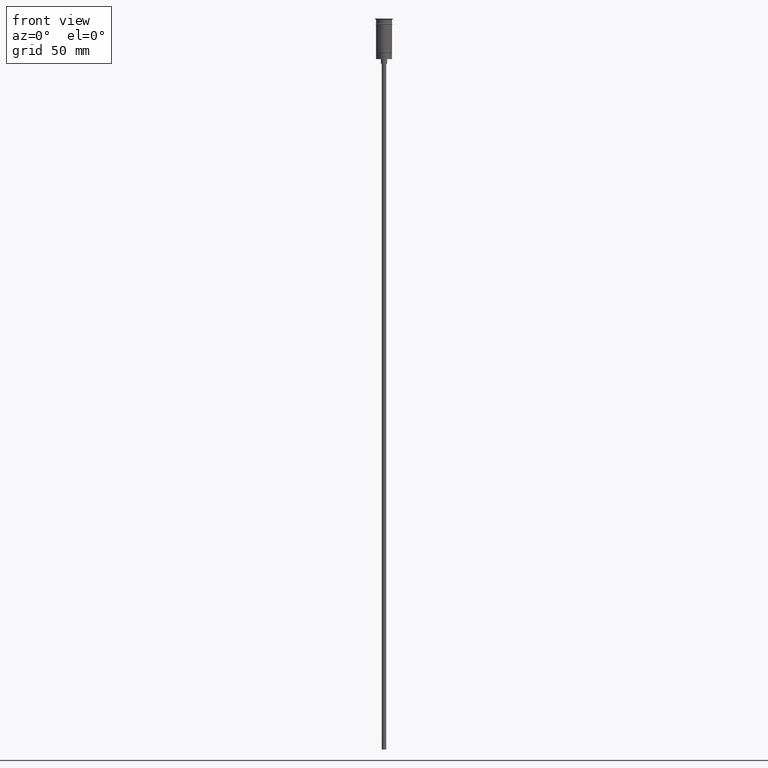
[diagram: clean part render]
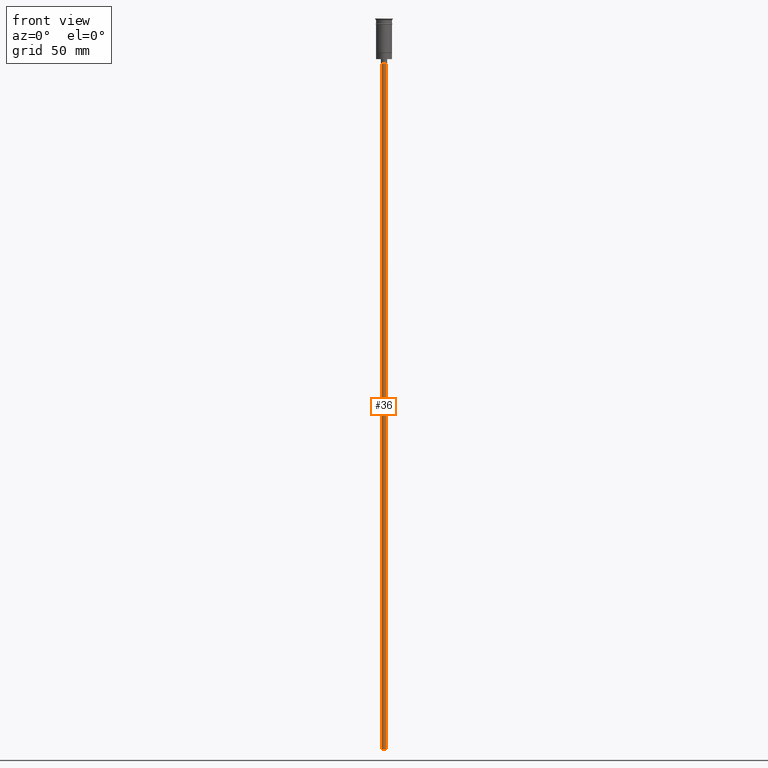
[diagram: same view with one face highlighted and labeled with its STEP entity id]
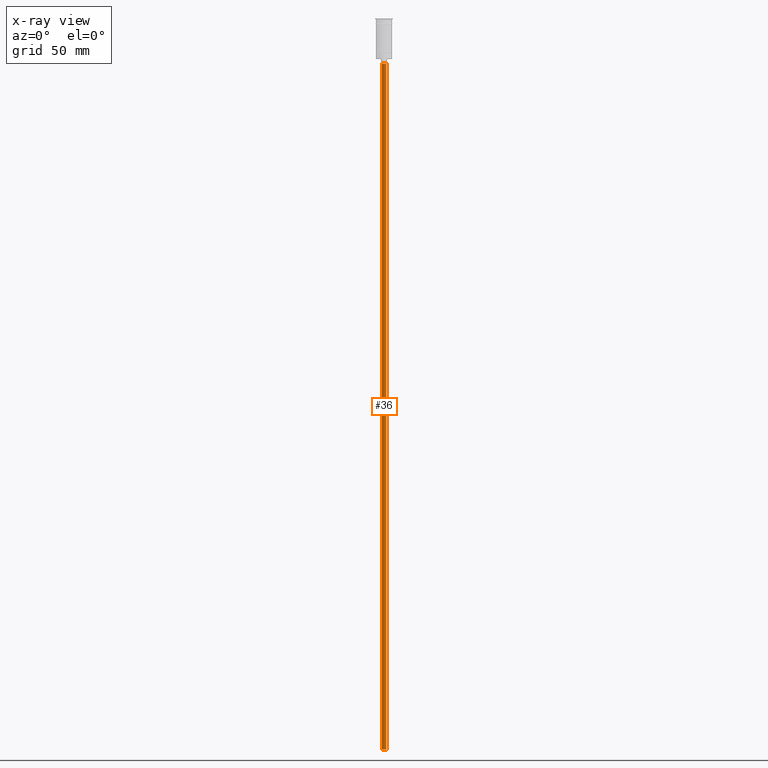
[diagram: x-ray of the same camera — body ghosted, the highlighted face saturated]
A machine part, front view. The second image highlights one B-rep face of the part: STEP entity #36.
The next image is the same camera in x-ray: the body ghosted, the highlighted face saturated — about 0% of this face is hidden behind the body in this view.
In plain terms, the highlighted cylindrical surface (edge-blend (fillet) strip) has radius 1.5 mm, axis along (-0, -0, 1).
Its self-contained STEP definition (entity closure, byte-faithful):
#13 = LINE ( 'NONE', #1119, #1391 ) ;
#36 = ADVANCED_FACE ( 'NONE', ( #471 ), #1090, .T. ) ;
#77 = EDGE_CURVE ( 'NONE', #347, #1224, #13, .T. ) ;
#97 = VECTOR ( 'NONE', #1148, 1000.000000000000000 ) ;
#107 = ORIENTED_EDGE ( 'NONE', *, *, #77, .F. ) ;
#118 = AXIS2_PLACEMENT_3D ( 'NONE', #850, #600, #441 ) ;
#165 = CARTESIAN_POINT ( 'NONE',  ( 1.500000000000000222, 0.000000000000000000, -29.50000000000000000 ) ) ;
#234 = DIRECTION ( 'NONE',  ( 0.000000000000000000, 0.000000000000000000, -1.000000000000000000 ) ) ;
#321 = ORIENTED_EDGE ( 'NONE', *, *, #796, .T. ) ;
#347 = VERTEX_POINT ( 'NONE', #1330 ) ;
#395 = DIRECTION ( 'NONE',  ( -1.000000000000000000, 0.000000000000000000, 0.000000000000000000 ) ) ;
#434 = LINE ( 'NONE', #556, #97 ) ;
#441 = DIRECTION ( 'NONE',  ( 1.000000000000000000, 0.000000000000000000, 0.000000000000000000 ) ) ;
#456 = AXIS2_PLACEMENT_3D ( 'NONE', #752, #518, #395 ) ;
#471 = FACE_OUTER_BOUND ( 'NONE', #797, .T. ) ;
#487 = CIRCLE ( 'NONE', #1242, 1.500000000000000222 ) ;
#518 = DIRECTION ( 'NONE',  ( 0.000000000000000000, 0.000000000000000000, -1.000000000000000000 ) ) ;
#556 = CARTESIAN_POINT ( 'NONE',  ( 1.500000000000000222, 0.000000000000000000, -476.5000000000000568 ) ) ;
#579 = EDGE_CURVE ( 'NONE', #1312, #347, #1159, .T. ) ;
#600 = DIRECTION ( 'NONE',  ( -0.000000000000000000, -0.000000000000000000, 1.000000000000000000 ) ) ;
#650 = VERTEX_POINT ( 'NONE', #165 ) ;
#752 = CARTESIAN_POINT ( 'NONE',  ( 0.000000000000000000, 0.000000000000000000, -476.5000000000000568 ) ) ;
#796 = EDGE_CURVE ( 'NONE', #650, #1224, #487, .T. ) ;
#797 = EDGE_LOOP ( 'NONE', ( #107, #1231, #1590, #321 ) ) ;
#827 = CARTESIAN_POINT ( 'NONE',  ( 1.500000000000000222, 0.000000000000000000, -476.5000000000000568 ) ) ;
#850 = CARTESIAN_POINT ( 'NONE',  ( 0.000000000000000000, 0.000000000000000000, -476.5000000000000568 ) ) ;
#1072 = DIRECTION ( 'NONE',  ( -1.000000000000000000, 0.000000000000000000, 0.000000000000000000 ) ) ;
#1090 = CYLINDRICAL_SURFACE ( 'NONE', #118, 1.500000000000000222 ) ;
#1119 = CARTESIAN_POINT ( 'NONE',  ( -1.500000000000000222, 1.836970198721030181E-16, -476.5000000000000568 ) ) ;
#1146 = EDGE_CURVE ( 'NONE', #1312, #650, #434, .T. ) ;
#1148 = DIRECTION ( 'NONE',  ( -0.000000000000000000, -0.000000000000000000, 1.000000000000000000 ) ) ;
#1152 = DIRECTION ( 'NONE',  ( -0.000000000000000000, -0.000000000000000000, 1.000000000000000000 ) ) ;
#1159 = CIRCLE ( 'NONE', #456, 1.500000000000000222 ) ;
#1200 = CARTESIAN_POINT ( 'NONE',  ( 0.000000000000000000, 0.000000000000000000, -29.50000000000000000 ) ) ;
#1204 = CARTESIAN_POINT ( 'NONE',  ( -1.500000000000000222, 1.836970198721030181E-16, -29.50000000000000000 ) ) ;
#1224 = VERTEX_POINT ( 'NONE', #1204 ) ;
#1231 = ORIENTED_EDGE ( 'NONE', *, *, #579, .F. ) ;
#1242 = AXIS2_PLACEMENT_3D ( 'NONE', #1200, #234, #1072 ) ;
#1312 = VERTEX_POINT ( 'NONE', #827 ) ;
#1330 = CARTESIAN_POINT ( 'NONE',  ( -1.500000000000000222, 1.836970198721030181E-16, -476.5000000000000568 ) ) ;
#1391 = VECTOR ( 'NONE', #1152, 1000.000000000000000 ) ;
#1590 = ORIENTED_EDGE ( 'NONE', *, *, #1146, .T. ) ;